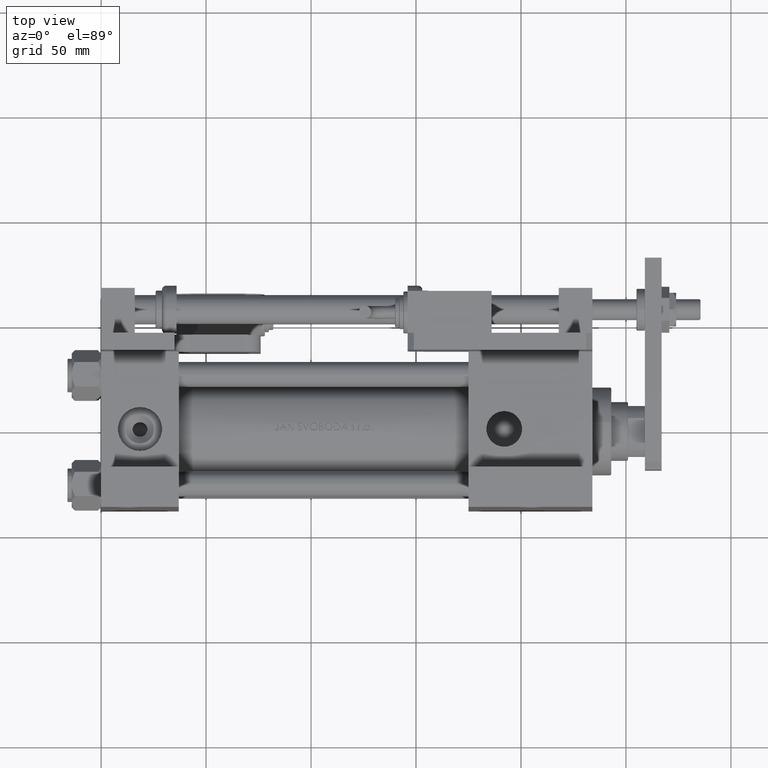
[diagram: clean part render]
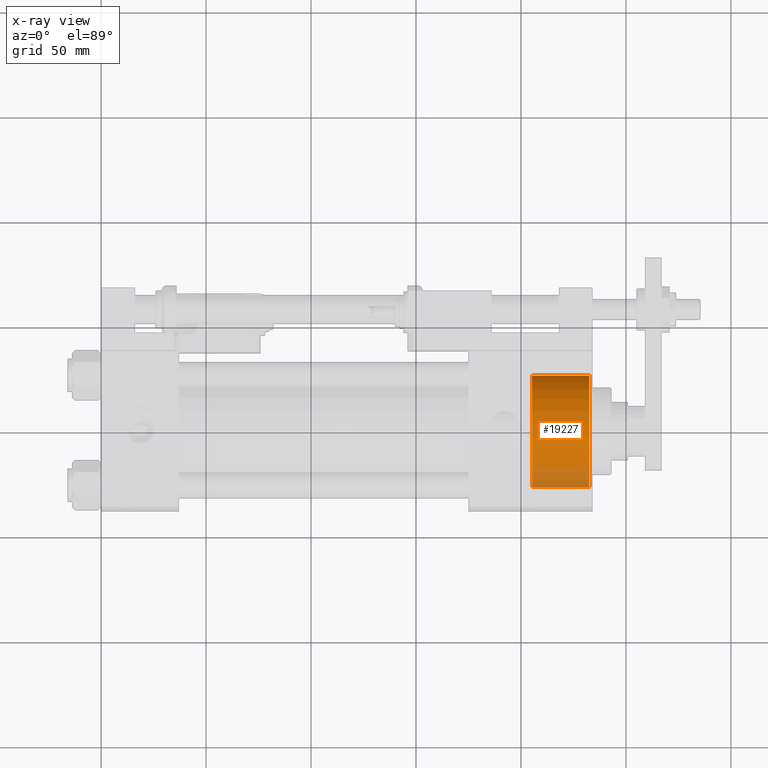
[diagram: x-ray — body ghosted, one internal face saturated and labeled with its STEP entity id]
A machine part, top view, then the same camera in x-ray: the body is ghosted and one INTERNAL B-rep face — a face not visible from any outside direction — is saturated and labeled: STEP entity #19227.
In plain terms, the highlighted cylindrical surface (partial cylindrical patch) has radius 26.5 mm, axis along (1, 0, 0).
Its self-contained STEP definition (entity closure, byte-faithful):
#37 = CIRCLE ( 'NONE', #15548, 26.50000000000000355 ) ;
#344 = CARTESIAN_POINT ( 'NONE',  ( 232.5000000000000000, 0.000000000000000000, -27.00000000000000355 ) ) ;
#2893 = EDGE_LOOP ( 'NONE', ( #36289, #44535, #23076, #27006 ) ) ;
#5716 = DIRECTION ( 'NONE',  ( 0.000000000000000000, 0.000000000000000000, -1.000000000000000000 ) ) ;
#8367 = VERTEX_POINT ( 'NONE', #344 ) ;
#9086 = EDGE_CURVE ( 'NONE', #23268, #8367, #35402, .T. ) ;
#9951 = CARTESIAN_POINT ( 'NONE',  ( 232.5000000000000000, 3.245314017740486554E-15, 26.00000000000000355 ) ) ;
#11195 = DIRECTION ( 'NONE',  ( 0.000000000000000000, 0.000000000000000000, -1.000000000000000000 ) ) ;
#11718 = DIRECTION ( 'NONE',  ( 1.000000000000000000, 0.000000000000000000, 0.000000000000000000 ) ) ;
#12964 = EDGE_CURVE ( 'NONE', #41946, #23268, #37, .T. ) ;
#15201 = DIRECTION ( 'NONE',  ( 1.000000000000000000, -0.000000000000000000, -0.000000000000000000 ) ) ;
#15548 = AXIS2_PLACEMENT_3D ( 'NONE', #48084, #11718, #11195 ) ;
#16218 = DIRECTION ( 'NONE',  ( 1.000000000000000000, 0.000000000000000000, 0.000000000000000000 ) ) ;
#18140 = CARTESIAN_POINT ( 'NONE',  ( 205.3000000000000114, 0.000000000000000000, -0.5000000000000004441 ) ) ;
#18951 = FACE_OUTER_BOUND ( 'NONE', #2893, .T. ) ;
#19227 = ADVANCED_FACE ( 'NONE', ( #18951 ), #43715, .F. ) ;
#23076 = ORIENTED_EDGE ( 'NONE', *, *, #38633, .T. ) ;
#23268 = VERTEX_POINT ( 'NONE', #48313 ) ;
#23878 = VERTEX_POINT ( 'NONE', #9951 ) ;
#25775 = DIRECTION ( 'NONE',  ( 1.000000000000000000, -0.000000000000000000, -0.000000000000000000 ) ) ;
#27006 = ORIENTED_EDGE ( 'NONE', *, *, #9086, .F. ) ;
#28321 = VECTOR ( 'NONE', #15201, 1000.000000000000000 ) ;
#31571 = CIRCLE ( 'NONE', #53042, 26.50000000000000355 ) ;
#32144 = CARTESIAN_POINT ( 'NONE',  ( 205.3000000000000114, 3.245314017740486554E-15, 26.00000000000000355 ) ) ;
#33739 = AXIS2_PLACEMENT_3D ( 'NONE', #18140, #51778, #5716 ) ;
#35402 = LINE ( 'NONE', #51828, #28321 ) ;
#36289 = ORIENTED_EDGE ( 'NONE', *, *, #12964, .F. ) ;
#37480 = CARTESIAN_POINT ( 'NONE',  ( 232.5000000000000000, 0.000000000000000000, -0.5000000000000004441 ) ) ;
#38633 = EDGE_CURVE ( 'NONE', #23878, #8367, #31571, .T. ) ;
#39149 = VECTOR ( 'NONE', #25775, 1000.000000000000000 ) ;
#40987 = DIRECTION ( 'NONE',  ( 0.000000000000000000, 0.000000000000000000, 1.000000000000000000 ) ) ;
#41946 = VERTEX_POINT ( 'NONE', #32144 ) ;
#42432 = LINE ( 'NONE', #50244, #39149 ) ;
#43715 = CYLINDRICAL_SURFACE ( 'NONE', #33739, 26.50000000000000355 ) ;
#44535 = ORIENTED_EDGE ( 'NONE', *, *, #51454, .T. ) ;
#48084 = CARTESIAN_POINT ( 'NONE',  ( 205.3000000000000114, 0.000000000000000000, -0.5000000000000004441 ) ) ;
#48313 = CARTESIAN_POINT ( 'NONE',  ( 205.3000000000000114, 0.000000000000000000, -27.00000000000000355 ) ) ;
#50244 = CARTESIAN_POINT ( 'NONE',  ( 205.3000000000000114, 3.245314017740486554E-15, 26.00000000000000355 ) ) ;
#51454 = EDGE_CURVE ( 'NONE', #41946, #23878, #42432, .T. ) ;
#51778 = DIRECTION ( 'NONE',  ( 1.000000000000000000, -0.000000000000000000, -0.000000000000000000 ) ) ;
#51828 = CARTESIAN_POINT ( 'NONE',  ( 205.3000000000000114, 0.000000000000000000, -27.00000000000000355 ) ) ;
#53042 = AXIS2_PLACEMENT_3D ( 'NONE', #37480, #16218, #40987 ) ;